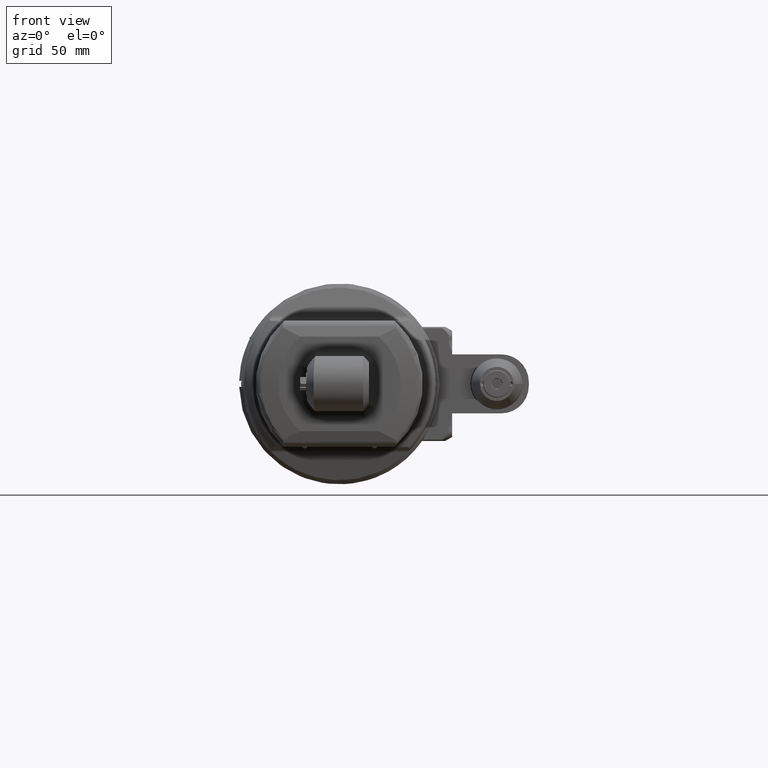
[diagram: clean part render]
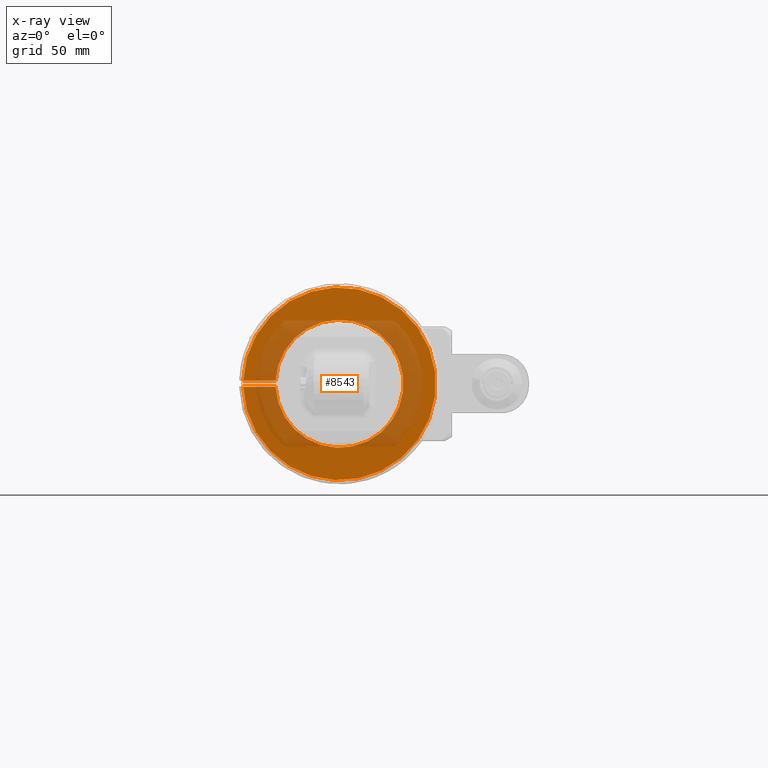
[diagram: x-ray — body ghosted, one internal face saturated and labeled with its STEP entity id]
A machine part, front view, then the same camera in x-ray: the body is ghosted and one INTERNAL B-rep face — a face not visible from any outside direction — is saturated and labeled: STEP entity #8543.
In plain terms, the highlighted planar face has unit normal (0, -1, 0).
Its self-contained STEP definition (entity closure, byte-faithful):
#401=PLANE('',#9255);
#741=FACE_OUTER_BOUND('',#1274,.T.);
#1274=EDGE_LOOP('',(#6487,#6488,#6489,#6490));
#2045=LINE('',#13865,#2676);
#2050=LINE('',#13899,#2681);
#2676=VECTOR('',#10683,16.51166927349);
#2681=VECTOR('',#10694,16.51166927349);
#3224=CIRCLE('',#9251,49.);
#3227=CIRCLE('',#9256,32.5);
#3775=VERTEX_POINT('',#13854);
#3776=VERTEX_POINT('',#13858);
#3777=VERTEX_POINT('',#13864);
#3785=VERTEX_POINT('',#13898);
#4768=EDGE_CURVE('',#3776,#3775,#3224,.T.);
#4770=EDGE_CURVE('',#3777,#3776,#2045,.T.);
#4779=EDGE_CURVE('',#3775,#3785,#2050,.T.);
#4780=EDGE_CURVE('',#3785,#3777,#3227,.T.);
#6487=ORIENTED_EDGE('',*,*,#4768,.T.);
#6488=ORIENTED_EDGE('',*,*,#4779,.T.);
#6489=ORIENTED_EDGE('',*,*,#4780,.T.);
#6490=ORIENTED_EDGE('',*,*,#4770,.T.);
#8543=ADVANCED_FACE('',(#741),#401,.T.);
#9251=AXIS2_PLACEMENT_3D('',#13859,#10679,#10680);
#9255=AXIS2_PLACEMENT_3D('',#13897,#10692,#10693);
#9256=AXIS2_PLACEMENT_3D('',#13900,#10695,#10696);
#10679=DIRECTION('center_axis',(0.,-1.,0.));
#10680=DIRECTION('ref_axis',(1.,0.,0.));
#10683=DIRECTION('',(-1.,0.,0.));
#10692=DIRECTION('center_axis',(0.,-1.,0.));
#10693=DIRECTION('ref_axis',(-1.,0.,0.));
#10694=DIRECTION('',(1.,0.,0.));
#10695=DIRECTION('center_axis',(0.,1.,0.));
#10696=DIRECTION('ref_axis',(-0.998934343430642,0.,0.0461538461538519));
#13854=CARTESIAN_POINT('',(-48.97703543499,0.,1.5));
#13858=CARTESIAN_POINT('',(-48.97703543499,0.,-1.5));
#13859=CARTESIAN_POINT('Origin',(0.,0.,0.));
#13864=CARTESIAN_POINT('',(-32.4653661615,0.,-1.5));
#13865=CARTESIAN_POINT('',(-32.4653661615,0.,-1.5));
#13897=CARTESIAN_POINT('Origin',(-49.13074005203,0.,0.));
#13898=CARTESIAN_POINT('',(-32.4653661615,0.,1.5));
#13899=CARTESIAN_POINT('',(-48.97703543499,0.,1.5));
#13900=CARTESIAN_POINT('Origin',(0.,0.,0.));